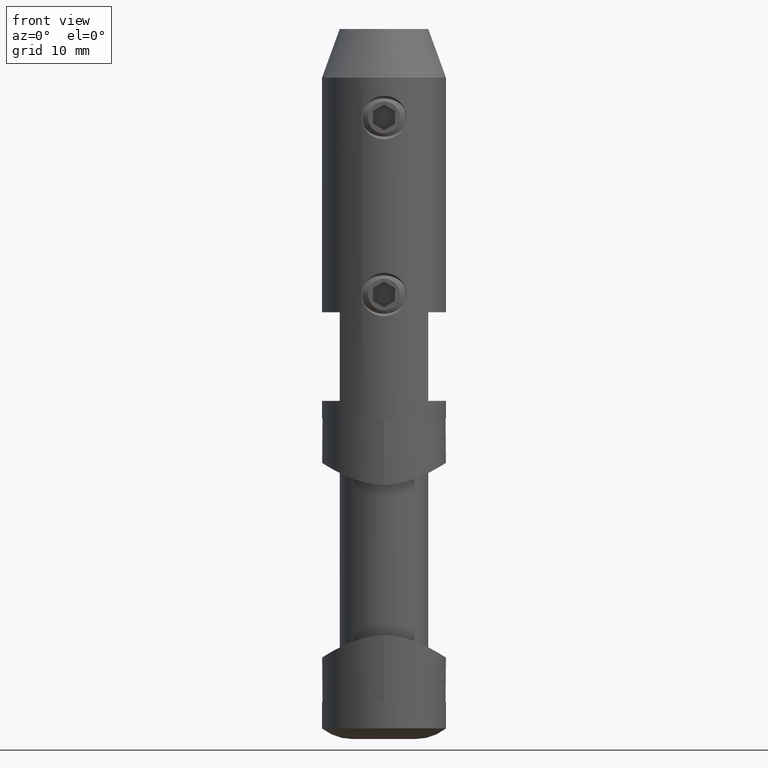
[diagram: clean part render]
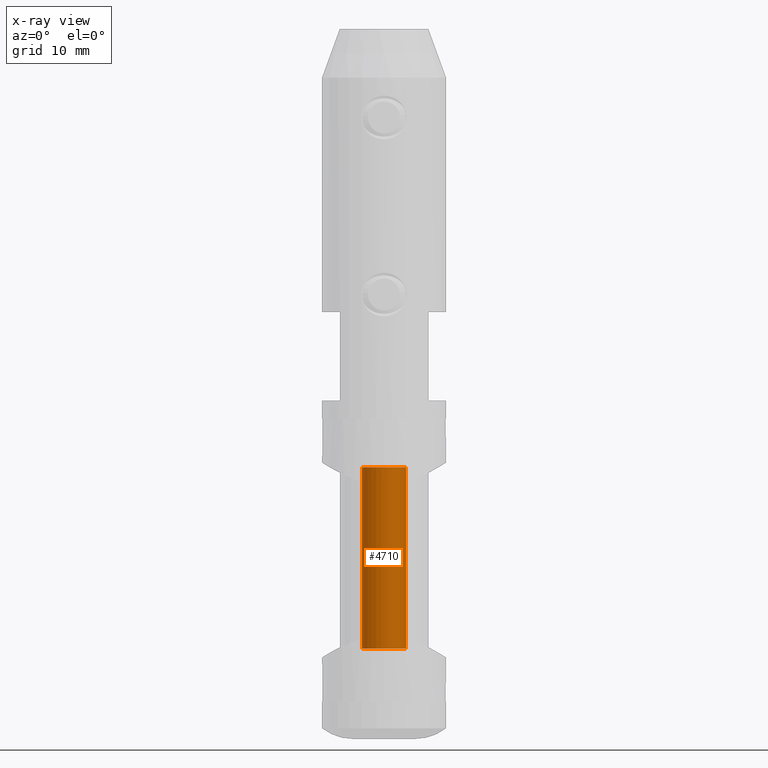
[diagram: x-ray — body ghosted, one internal face saturated and labeled with its STEP entity id]
A machine part, front view, then the same camera in x-ray: the body is ghosted and one INTERNAL B-rep face — a face not visible from any outside direction — is saturated and labeled: STEP entity #4710.
In plain terms, the highlighted cylindrical surface (edge-blend (fillet) strip) has radius 2.5 mm, axis along (0, 0, 1).
Its self-contained STEP definition (entity closure, byte-faithful):
#213 = ORIENTED_EDGE ( 'NONE', *, *, #11737, .T. ) ;
#637 = DIRECTION ( 'NONE',  ( 1.000000000000000000, 0.000000000000000000, 0.000000000000000000 ) ) ;
#771 = DIRECTION ( 'NONE',  ( 0.000000000000000000, 0.000000000000000000, 1.000000000000000000 ) ) ;
#1528 = EDGE_LOOP ( 'NONE', ( #19647, #213, #9332, #11470 ) ) ;
#2739 = EDGE_CURVE ( 'NONE', #7672, #17089, #4890, .T. ) ;
#3102 = LINE ( 'NONE', #4628, #17508 ) ;
#3330 = CARTESIAN_POINT ( 'NONE',  ( 2.499999999999992895, 0.000000000000000000, 13.49999999999999822 ) ) ;
#3398 = DIRECTION ( 'NONE',  ( -0.000000000000000000, -0.000000000000000000, 1.000000000000000000 ) ) ;
#4052 = EDGE_CURVE ( 'NONE', #13399, #7672, #12747, .T. ) ;
#4628 = CARTESIAN_POINT ( 'NONE',  ( -2.499999999999992895, 3.061616997868373773E-16, 13.49999999999999822 ) ) ;
#4710 = ADVANCED_FACE ( 'NONE', ( #13751 ), #13270, .F. ) ;
#4890 = LINE ( 'NONE', #3330, #10785 ) ;
#7672 = VERTEX_POINT ( 'NONE', #18228 ) ;
#8103 = AXIS2_PLACEMENT_3D ( 'NONE', #11500, #19148, #8364 ) ;
#8364 = DIRECTION ( 'NONE',  ( 1.000000000000000000, 0.000000000000000000, 0.000000000000000000 ) ) ;
#9332 = ORIENTED_EDGE ( 'NONE', *, *, #18624, .T. ) ;
#10785 = VECTOR ( 'NONE', #3398, 1000.000000000000000 ) ;
#11470 = ORIENTED_EDGE ( 'NONE', *, *, #2739, .F. ) ;
#11500 = CARTESIAN_POINT ( 'NONE',  ( 0.000000000000000000, 0.000000000000000000, 13.49999999999999822 ) ) ;
#11737 = EDGE_CURVE ( 'NONE', #13399, #15985, #3102, .T. ) ;
#11754 = CARTESIAN_POINT ( 'NONE',  ( 0.000000000000000000, 0.000000000000000000, 13.00000000000000533 ) ) ;
#12191 = DIRECTION ( 'NONE',  ( 1.000000000000000000, 0.000000000000000000, 0.000000000000000000 ) ) ;
#12681 = AXIS2_PLACEMENT_3D ( 'NONE', #18202, #19853, #12191 ) ;
#12747 = CIRCLE ( 'NONE', #12681, 2.499999999999995559 ) ;
#13196 = DIRECTION ( 'NONE',  ( -0.000000000000000000, -0.000000000000000000, 1.000000000000000000 ) ) ;
#13270 = CYLINDRICAL_SURFACE ( 'NONE', #8103, 2.499999999999992895 ) ;
#13399 = VERTEX_POINT ( 'NONE', #18044 ) ;
#13751 = FACE_OUTER_BOUND ( 'NONE', #1528, .T. ) ;
#14164 = CARTESIAN_POINT ( 'NONE',  ( -2.499999999999992895, 3.061616997868373773E-16, 13.00000000000000533 ) ) ;
#14228 = CIRCLE ( 'NONE', #18490, 2.499999999999992895 ) ;
#14431 = CARTESIAN_POINT ( 'NONE',  ( 2.499999999999992895, 0.000000000000000000, 13.00000000000000533 ) ) ;
#15985 = VERTEX_POINT ( 'NONE', #14164 ) ;
#17089 = VERTEX_POINT ( 'NONE', #14431 ) ;
#17508 = VECTOR ( 'NONE', #13196, 1000.000000000000000 ) ;
#18044 = CARTESIAN_POINT ( 'NONE',  ( -2.499999999999995559, 3.061616997868377718E-16, -7.500000000000000000 ) ) ;
#18202 = CARTESIAN_POINT ( 'NONE',  ( 0.000000000000000000, 0.000000000000000000, -7.500000000000000000 ) ) ;
#18228 = CARTESIAN_POINT ( 'NONE',  ( 2.499999999999995559, 0.000000000000000000, -7.500000000000000000 ) ) ;
#18490 = AXIS2_PLACEMENT_3D ( 'NONE', #11754, #771, #637 ) ;
#18624 = EDGE_CURVE ( 'NONE', #15985, #17089, #14228, .T. ) ;
#19148 = DIRECTION ( 'NONE',  ( -0.000000000000000000, -0.000000000000000000, 1.000000000000000000 ) ) ;
#19647 = ORIENTED_EDGE ( 'NONE', *, *, #4052, .F. ) ;
#19853 = DIRECTION ( 'NONE',  ( -0.000000000000000000, -0.000000000000000000, 1.000000000000000000 ) ) ;